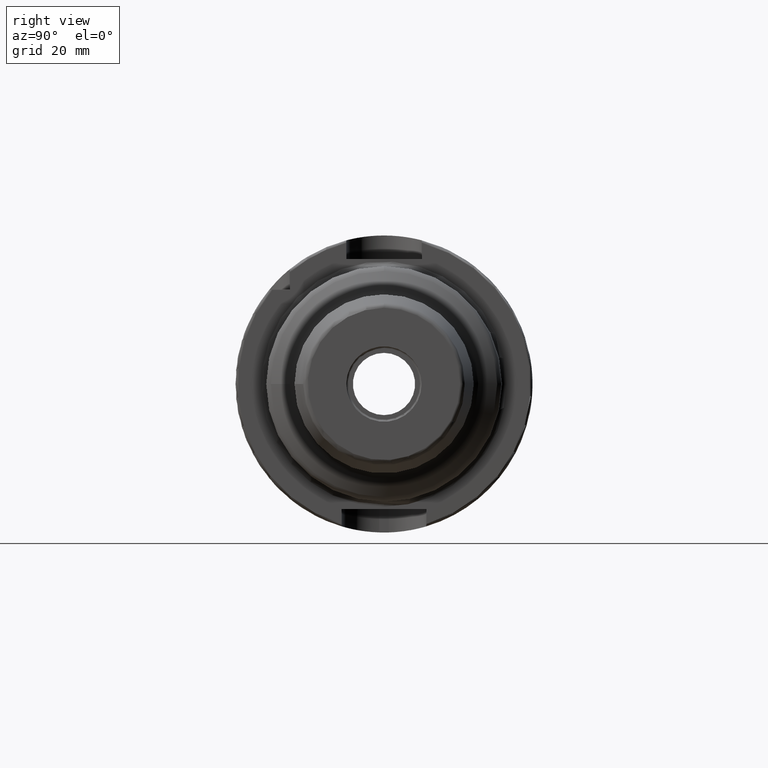
[diagram: clean part render]
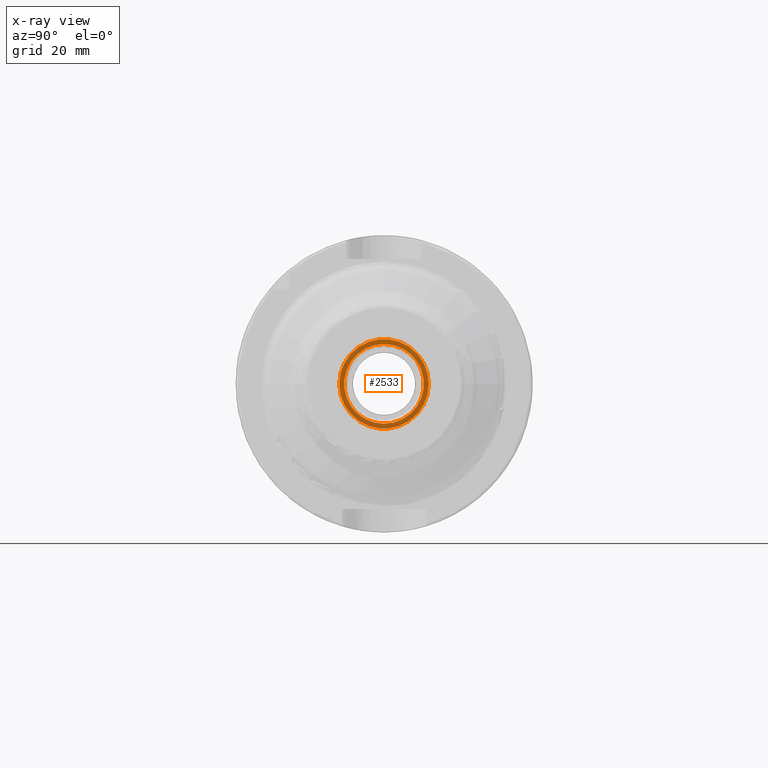
[diagram: x-ray — body ghosted, one internal face saturated and labeled with its STEP entity id]
A machine part, right view, then the same camera in x-ray: the body is ghosted and one INTERNAL B-rep face — a face not visible from any outside direction — is saturated and labeled: STEP entity #2533.
In plain terms, the highlighted planar face has unit normal (-1, 0, 0).
Its self-contained STEP definition (entity closure, byte-faithful):
#152=FACE_BOUND('',#342,.T.);
#162=PLANE('',#2698);
#206=FACE_OUTER_BOUND('',#341,.T.);
#341=EDGE_LOOP('',(#1670,#1671));
#342=EDGE_LOOP('',(#1672,#1673));
#715=CIRCLE('',#2690,8.45873400000001);
#716=CIRCLE('',#2691,8.45873400000001);
#719=CIRCLE('',#2696,9.5);
#720=CIRCLE('',#2697,9.5);
#941=VERTEX_POINT('',#3912);
#942=VERTEX_POINT('',#3914);
#945=VERTEX_POINT('',#3923);
#946=VERTEX_POINT('',#3925);
#1236=EDGE_CURVE('',#942,#941,#715,.T.);
#1237=EDGE_CURVE('',#941,#942,#716,.T.);
#1241=EDGE_CURVE('',#945,#946,#719,.T.);
#1242=EDGE_CURVE('',#946,#945,#720,.T.);
#1670=ORIENTED_EDGE('',*,*,#1242,.F.);
#1671=ORIENTED_EDGE('',*,*,#1241,.F.);
#1672=ORIENTED_EDGE('',*,*,#1236,.T.);
#1673=ORIENTED_EDGE('',*,*,#1237,.T.);
#2533=ADVANCED_FACE('',(#206,#152),#162,.F.);
#2690=AXIS2_PLACEMENT_3D('',#3915,#3067,#3068);
#2691=AXIS2_PLACEMENT_3D('',#3916,#3069,#3070);
#2696=AXIS2_PLACEMENT_3D('',#3926,#3080,#3081);
#2697=AXIS2_PLACEMENT_3D('',#3927,#3082,#3083);
#2698=AXIS2_PLACEMENT_3D('',#3928,#3084,#3085);
#3067=DIRECTION('center_axis',(-1.,0.,0.));
#3068=DIRECTION('ref_axis',(0.,0.,1.));
#3069=DIRECTION('center_axis',(-1.,0.,0.));
#3070=DIRECTION('ref_axis',(0.,0.,1.));
#3080=DIRECTION('center_axis',(-1.,0.,0.));
#3081=DIRECTION('ref_axis',(0.,0.,1.));
#3082=DIRECTION('center_axis',(-1.,0.,0.));
#3083=DIRECTION('ref_axis',(0.,0.,1.));
#3084=DIRECTION('center_axis',(-1.,0.,0.));
#3085=DIRECTION('ref_axis',(0.,0.,1.));
#3912=CARTESIAN_POINT('',(24.,-1.03589615179389E-15,-8.458734));
#3914=CARTESIAN_POINT('',(24.,0.,8.458734));
#3915=CARTESIAN_POINT('Origin',(24.,0.,0.));
#3916=CARTESIAN_POINT('Origin',(24.,0.,0.));
#3923=CARTESIAN_POINT('',(24.,-9.5,1.16341445918999E-15));
#3925=CARTESIAN_POINT('',(24.,9.5,0.));
#3926=CARTESIAN_POINT('Origin',(24.,0.,0.));
#3927=CARTESIAN_POINT('Origin',(24.,0.,0.));
#3928=CARTESIAN_POINT('Origin',(24.,7.,0.));